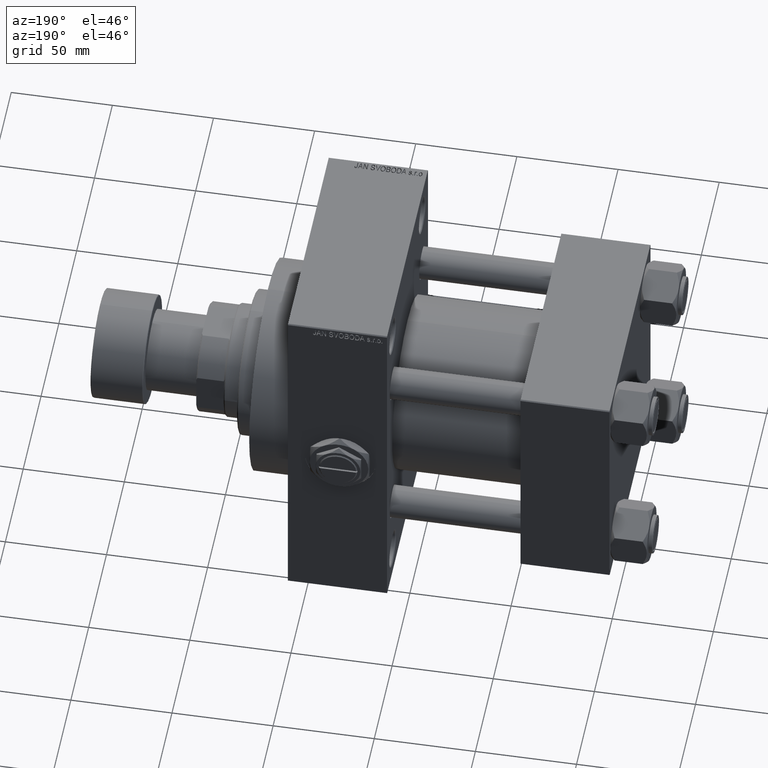
[diagram: clean part render]
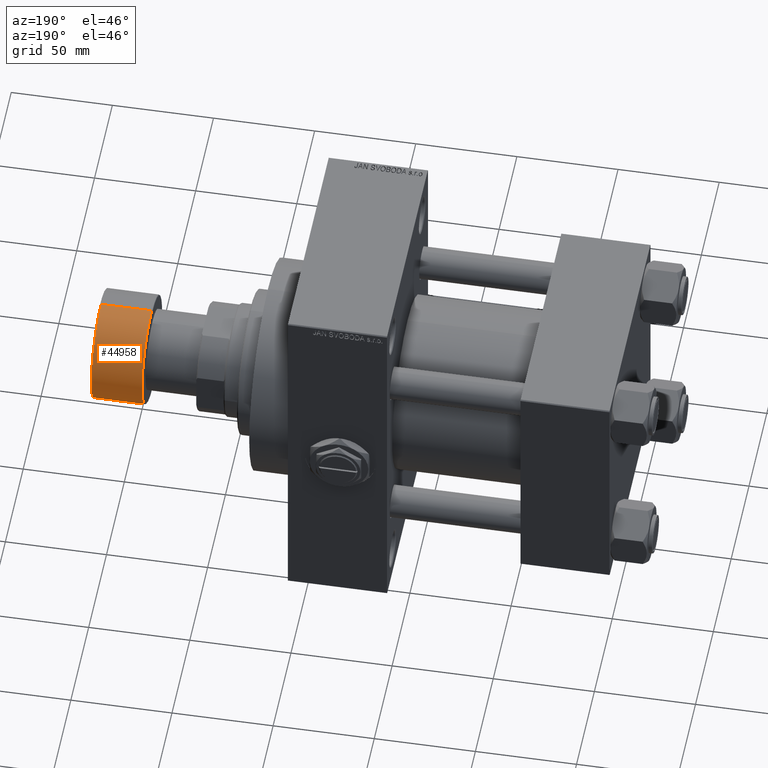
[diagram: same view with one face highlighted and labeled with its STEP entity id]
A machine part, auxiliary view. The second image highlights one B-rep face of the part: STEP entity #44958.
In plain terms, the highlighted cylindrical surface (partial cylindrical patch) has radius 27 mm, axis along (1, 0, 0).
Its self-contained STEP definition (entity closure, byte-faithful):
#2314 = DIRECTION ( 'NONE',  ( 0.000000000000000000, 0.000000000000000000, 1.000000000000000000 ) ) ;
#2315 = ORIENTED_EDGE ( 'NONE', *, *, #46047, .T. ) ;
#2610 = VECTOR ( 'NONE', #49608, 1000.000000000000000 ) ;
#8194 = CARTESIAN_POINT ( 'NONE',  ( 0.000000000000000000, 0.000000000000000000, -26.00000000000000000 ) ) ;
#9691 = EDGE_CURVE ( 'NONE', #48735, #33773, #47989, .T. ) ;
#12070 = CARTESIAN_POINT ( 'NONE',  ( 27.00000000000000000, 0.000000000000000000, -25.50000000000000000 ) ) ;
#13971 = CARTESIAN_POINT ( 'NONE',  ( -27.00000000000000000, 3.306546357697852944E-15, -0.5000000000000004441 ) ) ;
#16143 = ORIENTED_EDGE ( 'NONE', *, *, #34527, .F. ) ;
#17991 = VERTEX_POINT ( 'NONE', #40800 ) ;
#18251 = LINE ( 'NONE', #41575, #2610 ) ;
#18712 = DIRECTION ( 'NONE',  ( 1.000000000000000000, 0.000000000000000000, 0.000000000000000000 ) ) ;
#18977 = FACE_OUTER_BOUND ( 'NONE', #25273, .T. ) ;
#21233 = DIRECTION ( 'NONE',  ( 0.000000000000000000, 0.000000000000000000, 1.000000000000000000 ) ) ;
#22993 = CYLINDRICAL_SURFACE ( 'NONE', #45049, 27.00000000000000000 ) ;
#25000 = LINE ( 'NONE', #40301, #36611 ) ;
#25146 = CARTESIAN_POINT ( 'NONE',  ( 0.000000000000000000, 0.000000000000000000, -25.50000000000000000 ) ) ;
#25273 = EDGE_LOOP ( 'NONE', ( #49266, #2315, #47264, #16143 ) ) ;
#32913 = DIRECTION ( 'NONE',  ( 1.000000000000000000, 0.000000000000000000, 0.000000000000000000 ) ) ;
#33762 = CARTESIAN_POINT ( 'NONE',  ( 0.000000000000000000, 0.000000000000000000, -0.5000000000000004441 ) ) ;
#33773 = VERTEX_POINT ( 'NONE', #38680 ) ;
#34276 = DIRECTION ( 'NONE',  ( 1.000000000000000000, 0.000000000000000000, 0.000000000000000000 ) ) ;
#34527 = EDGE_CURVE ( 'NONE', #48735, #17991, #25000, .T. ) ;
#35184 = VERTEX_POINT ( 'NONE', #13971 ) ;
#35265 = DIRECTION ( 'NONE',  ( 0.000000000000000000, 0.000000000000000000, 1.000000000000000000 ) ) ;
#36611 = VECTOR ( 'NONE', #21233, 1000.000000000000000 ) ;
#37137 = CIRCLE ( 'NONE', #37924, 27.00000000000000000 ) ;
#37924 = AXIS2_PLACEMENT_3D ( 'NONE', #33762, #49083, #18712 ) ;
#38680 = CARTESIAN_POINT ( 'NONE',  ( -27.00000000000000000, 3.306546357697852944E-15, -25.50000000000000000 ) ) ;
#39973 = AXIS2_PLACEMENT_3D ( 'NONE', #25146, #2314, #32913 ) ;
#40301 = CARTESIAN_POINT ( 'NONE',  ( 27.00000000000000000, 0.000000000000000000, -26.00000000000000000 ) ) ;
#40800 = CARTESIAN_POINT ( 'NONE',  ( 27.00000000000000000, 0.000000000000000000, -0.5000000000000004441 ) ) ;
#41575 = CARTESIAN_POINT ( 'NONE',  ( -27.00000000000000000, 3.306546357697852944E-15, -26.00000000000000000 ) ) ;
#44958 = ADVANCED_FACE ( 'NONE', ( #18977 ), #22993, .T. ) ;
#45049 = AXIS2_PLACEMENT_3D ( 'NONE', #8194, #35265, #34276 ) ;
#46047 = EDGE_CURVE ( 'NONE', #33773, #35184, #18251, .T. ) ;
#47264 = ORIENTED_EDGE ( 'NONE', *, *, #47957, .T. ) ;
#47957 = EDGE_CURVE ( 'NONE', #35184, #17991, #37137, .T. ) ;
#47989 = CIRCLE ( 'NONE', #39973, 27.00000000000000000 ) ;
#48735 = VERTEX_POINT ( 'NONE', #12070 ) ;
#49083 = DIRECTION ( 'NONE',  ( -0.000000000000000000, -0.000000000000000000, -1.000000000000000000 ) ) ;
#49266 = ORIENTED_EDGE ( 'NONE', *, *, #9691, .T. ) ;
#49608 = DIRECTION ( 'NONE',  ( 0.000000000000000000, 0.000000000000000000, 1.000000000000000000 ) ) ;